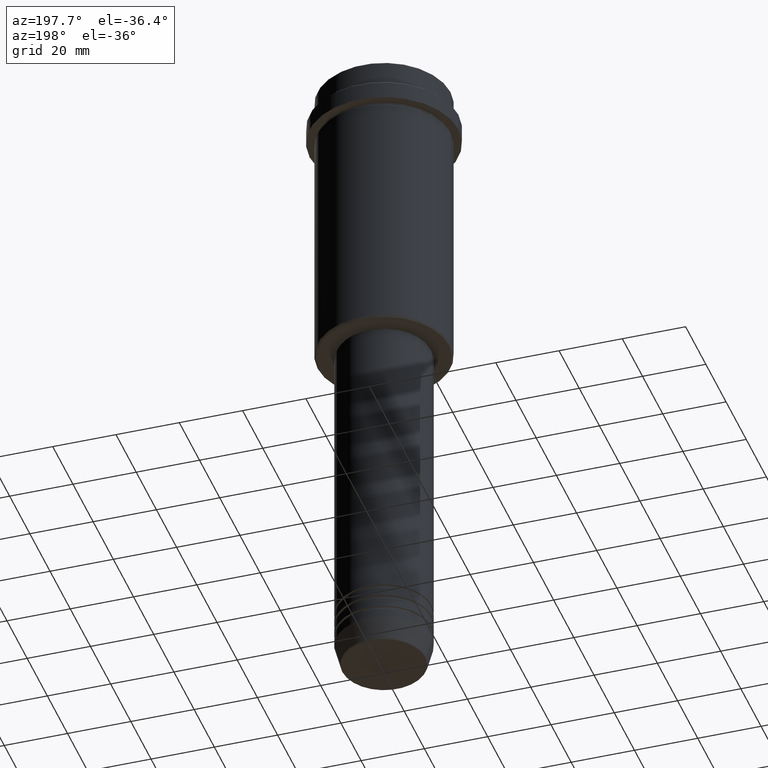
[diagram: clean part render]
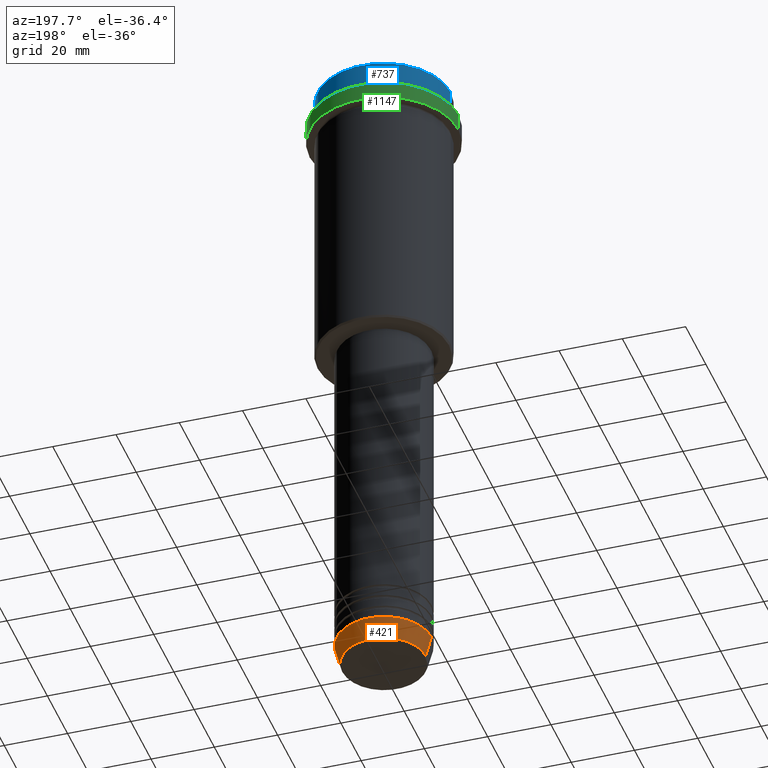
[diagram: same view with three faces highlighted in distinct colors, each labeled with its STEP entity id]
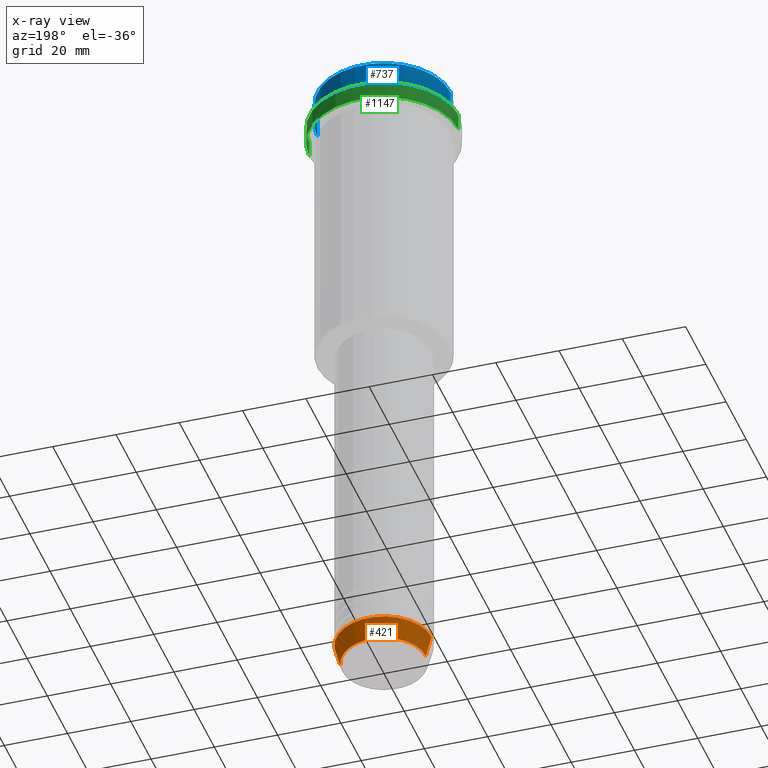
[diagram: x-ray of the same camera — body ghosted, the three highlighted faces saturated]
A machine part, auxiliary view with three faces highlighted in distinct colors.
The next image is the same camera in x-ray (body ghosted, the three faces saturated) — at least one of them is partly hidden behind the body in this view.
Their STEP definitions:

[orange] entity #421 — the highlighted conical surface has half-angle 15 deg.
#8 = CARTESIAN_POINT ( 'NONE',  ( 0.000000000000000000, 0.000000000000000000, -203.0000000000000000 ) ) ;
#14 = ORIENTED_EDGE ( 'NONE', *, *, #821, .F. ) ;
#23 = CARTESIAN_POINT ( 'NONE',  ( 13.22365507213719660, 0.000000000000000000, -209.6294095225512706 ) ) ;
#160 = VERTEX_POINT ( 'NONE', #788 ) ;
#237 = DIRECTION ( 'NONE',  ( 1.000000000000000000, 0.000000000000000000, 0.000000000000000000 ) ) ;
#299 = VECTOR ( 'NONE', #714, 1000.000000000000114 ) ;
#305 = AXIS2_PLACEMENT_3D ( 'NONE', #525, #544, #659 ) ;
#318 = CARTESIAN_POINT ( 'NONE',  ( -15.00000000000000000, 1.836970198721029589E-15, -203.0000000000000000 ) ) ;
#372 = CIRCLE ( 'NONE', #958, 15.00000000000000000 ) ;
#421 = ADVANCED_FACE ( 'NONE', ( #674 ), #1396, .T. ) ;
#516 = LINE ( 'NONE', #1261, #299 ) ;
#525 = CARTESIAN_POINT ( 'NONE',  ( 0.000000000000000000, 0.000000000000000000, -209.6294095225512706 ) ) ;
#544 = DIRECTION ( 'NONE',  ( -0.000000000000000000, -0.000000000000000000, 1.000000000000000000 ) ) ;
#606 = VERTEX_POINT ( 'NONE', #23 ) ;
#621 = CIRCLE ( 'NONE', #305, 13.22365507213719660 ) ;
#648 = DIRECTION ( 'NONE',  ( 0.2588190451025210725, 0.000000000000000000, 0.9659258262890680902 ) ) ;
#659 = DIRECTION ( 'NONE',  ( 1.000000000000000000, 0.000000000000000000, 0.000000000000000000 ) ) ;
#674 = FACE_OUTER_BOUND ( 'NONE', #1293, .T. ) ;
#678 = ORIENTED_EDGE ( 'NONE', *, *, #793, .T. ) ;
#714 = DIRECTION ( 'NONE',  ( -0.2588190451025210725, 3.169619151431769255E-17, 0.9659258262890680902 ) ) ;
#788 = CARTESIAN_POINT ( 'NONE',  ( -13.22365507213719837, 1.728200442216588780E-15, -209.6294095225512706 ) ) ;
#793 = EDGE_CURVE ( 'NONE', #606, #160, #621, .T. ) ;
#821 = EDGE_CURVE ( 'NONE', #606, #1371, #863, .T. ) ;
#858 = CARTESIAN_POINT ( 'NONE',  ( 15.00000000000000000, 0.000000000000000000, -203.0000000000000000 ) ) ;
#863 = LINE ( 'NONE', #1098, #1397 ) ;
#875 = DIRECTION ( 'NONE',  ( -0.000000000000000000, -0.000000000000000000, 1.000000000000000000 ) ) ;
#919 = EDGE_CURVE ( 'NONE', #1371, #920, #372, .T. ) ;
#920 = VERTEX_POINT ( 'NONE', #318 ) ;
#937 = ORIENTED_EDGE ( 'NONE', *, *, #1216, .T. ) ;
#958 = AXIS2_PLACEMENT_3D ( 'NONE', #8, #1312, #237 ) ;
#988 = CARTESIAN_POINT ( 'NONE',  ( 0.000000000000000000, 0.000000000000000000, -203.0000000000000000 ) ) ;
#1098 = CARTESIAN_POINT ( 'NONE',  ( 15.00000000000000000, 0.000000000000000000, -203.0000000000000000 ) ) ;
#1166 = ORIENTED_EDGE ( 'NONE', *, *, #919, .F. ) ;
#1216 = EDGE_CURVE ( 'NONE', #160, #920, #516, .T. ) ;
#1255 = AXIS2_PLACEMENT_3D ( 'NONE', #988, #875, #1301 ) ;
#1261 = CARTESIAN_POINT ( 'NONE',  ( -15.00000000000000000, 1.836970198721029589E-15, -203.0000000000000000 ) ) ;
#1293 = EDGE_LOOP ( 'NONE', ( #678, #937, #1166, #14 ) ) ;
#1301 = DIRECTION ( 'NONE',  ( 1.000000000000000000, 0.000000000000000000, 0.000000000000000000 ) ) ;
#1312 = DIRECTION ( 'NONE',  ( -0.000000000000000000, -0.000000000000000000, 1.000000000000000000 ) ) ;
#1371 = VERTEX_POINT ( 'NONE', #858 ) ;
#1396 = CONICAL_SURFACE ( 'NONE', #1255, 15.00000000000000000, 0.2617993877991497964 ) ;
#1397 = VECTOR ( 'NONE', #648, 1000.000000000000114 ) ;

[blue] entity #737 — the highlighted cylindrical surface (partial cylindrical patch) has radius 21 mm, axis along (-0, -0, 1).
#47 = VERTEX_POINT ( 'NONE', #1305 ) ;
#53 = EDGE_CURVE ( 'NONE', #872, #494, #437, .T. ) ;
#57 = ORIENTED_EDGE ( 'NONE', *, *, #157, .T. ) ;
#107 = CARTESIAN_POINT ( 'NONE',  ( -21.00000000000000000, 2.571758278209441661E-15, -7.999999999999998224 ) ) ;
#110 = CARTESIAN_POINT ( 'NONE',  ( -21.00000000000000000, 2.571758278209441661E-15, 0.000000000000000000 ) ) ;
#157 = EDGE_CURVE ( 'NONE', #494, #625, #559, .T. ) ;
#164 = CARTESIAN_POINT ( 'NONE',  ( 0.000000000000000000, 0.000000000000000000, -0.5000000000000108802 ) ) ;
#200 = CARTESIAN_POINT ( 'NONE',  ( 0.000000000000000000, 0.000000000000000000, 0.000000000000000000 ) ) ;
#254 = EDGE_CURVE ( 'NONE', #625, #47, #1228, .T. ) ;
#328 = VECTOR ( 'NONE', #1151, 1000.000000000000000 ) ;
#424 = EDGE_LOOP ( 'NONE', ( #537, #57, #691, #1137 ) ) ;
#437 = CIRCLE ( 'NONE', #1345, 21.00000000000000000 ) ;
#460 = AXIS2_PLACEMENT_3D ( 'NONE', #164, #1376, #1242 ) ;
#494 = VERTEX_POINT ( 'NONE', #107 ) ;
#519 = DIRECTION ( 'NONE',  ( 1.000000000000000000, 0.000000000000000000, 0.000000000000000000 ) ) ;
#537 = ORIENTED_EDGE ( 'NONE', *, *, #53, .T. ) ;
#542 = DIRECTION ( 'NONE',  ( 1.000000000000000000, 0.000000000000000000, 0.000000000000000000 ) ) ;
#554 = DIRECTION ( 'NONE',  ( -0.000000000000000000, -0.000000000000000000, 1.000000000000000000 ) ) ;
#559 = LINE ( 'NONE', #110, #844 ) ;
#625 = VERTEX_POINT ( 'NONE', #1356 ) ;
#647 = AXIS2_PLACEMENT_3D ( 'NONE', #200, #940, #519 ) ;
#691 = ORIENTED_EDGE ( 'NONE', *, *, #254, .T. ) ;
#716 = CYLINDRICAL_SURFACE ( 'NONE', #647, 21.00000000000000000 ) ;
#717 = EDGE_CURVE ( 'NONE', #872, #47, #1045, .T. ) ;
#737 = ADVANCED_FACE ( 'NONE', ( #1053 ), #716, .T. ) ;
#835 = CARTESIAN_POINT ( 'NONE',  ( 21.00000000000000000, 0.000000000000000000, 0.000000000000000000 ) ) ;
#844 = VECTOR ( 'NONE', #554, 1000.000000000000000 ) ;
#872 = VERTEX_POINT ( 'NONE', #1307 ) ;
#940 = DIRECTION ( 'NONE',  ( -0.000000000000000000, -0.000000000000000000, 1.000000000000000000 ) ) ;
#1045 = LINE ( 'NONE', #835, #328 ) ;
#1053 = FACE_OUTER_BOUND ( 'NONE', #424, .T. ) ;
#1076 = DIRECTION ( 'NONE',  ( -0.000000000000000000, -0.000000000000000000, 1.000000000000000000 ) ) ;
#1137 = ORIENTED_EDGE ( 'NONE', *, *, #717, .F. ) ;
#1151 = DIRECTION ( 'NONE',  ( -0.000000000000000000, -0.000000000000000000, 1.000000000000000000 ) ) ;
#1177 = CARTESIAN_POINT ( 'NONE',  ( 0.000000000000000000, 0.000000000000000000, -7.999999999999998224 ) ) ;
#1228 = CIRCLE ( 'NONE', #460, 21.00000000000000000 ) ;
#1242 = DIRECTION ( 'NONE',  ( 1.000000000000000000, 0.000000000000000000, 0.000000000000000000 ) ) ;
#1305 = CARTESIAN_POINT ( 'NONE',  ( 21.00000000000000000, 0.000000000000000000, -0.5000000000000108802 ) ) ;
#1307 = CARTESIAN_POINT ( 'NONE',  ( 21.00000000000000000, 0.000000000000000000, -7.999999999999998224 ) ) ;
#1345 = AXIS2_PLACEMENT_3D ( 'NONE', #1177, #1076, #542 ) ;
#1356 = CARTESIAN_POINT ( 'NONE',  ( -21.00000000000000000, 2.571758278209441661E-15, -0.5000000000000108802 ) ) ;
#1376 = DIRECTION ( 'NONE',  ( 0.000000000000000000, 0.000000000000000000, -1.000000000000000000 ) ) ;

[green] entity #1147 — the highlighted cylindrical surface (partial cylindrical patch) has radius 23.5 mm, axis along (-0, -0, 1).
#149 = VERTEX_POINT ( 'NONE', #767 ) ;
#167 = DIRECTION ( 'NONE',  ( 0.000000000000000000, 0.000000000000000000, -1.000000000000000000 ) ) ;
#185 = EDGE_CURVE ( 'NONE', #1405, #149, #1206, .T. ) ;
#189 = CARTESIAN_POINT ( 'NONE',  ( 0.000000000000000000, 0.000000000000000000, -9.499999999999971578 ) ) ;
#227 = VECTOR ( 'NONE', #1021, 1000.000000000000000 ) ;
#234 = CARTESIAN_POINT ( 'NONE',  ( 0.000000000000000000, 0.000000000000000000, -15.00000000000000000 ) ) ;
#249 = CARTESIAN_POINT ( 'NONE',  ( 23.50000000000000000, 0.000000000000000000, -9.499999999999971578 ) ) ;
#294 = DIRECTION ( 'NONE',  ( 1.000000000000000000, 0.000000000000000000, 0.000000000000000000 ) ) ;
#336 = ORIENTED_EDGE ( 'NONE', *, *, #185, .T. ) ;
#408 = DIRECTION ( 'NONE',  ( -0.000000000000000000, -0.000000000000000000, 1.000000000000000000 ) ) ;
#417 = CARTESIAN_POINT ( 'NONE',  ( 0.000000000000000000, 0.000000000000000000, 0.000000000000000000 ) ) ;
#477 = LINE ( 'NONE', #1122, #227 ) ;
#503 = CARTESIAN_POINT ( 'NONE',  ( -23.50000000000000000, 2.877919977996280320E-15, -9.499999999999971578 ) ) ;
#590 = CIRCLE ( 'NONE', #730, 23.50000000000000000 ) ;
#598 = VERTEX_POINT ( 'NONE', #249 ) ;
#627 = CARTESIAN_POINT ( 'NONE',  ( 23.50000000000000355, 0.000000000000000000, -15.00000000000000000 ) ) ;
#661 = AXIS2_PLACEMENT_3D ( 'NONE', #417, #408, #294 ) ;
#669 = DIRECTION ( 'NONE',  ( -0.000000000000000000, -0.000000000000000000, 1.000000000000000000 ) ) ;
#730 = AXIS2_PLACEMENT_3D ( 'NONE', #189, #167, #827 ) ;
#756 = VECTOR ( 'NONE', #879, 1000.000000000000000 ) ;
#759 = LINE ( 'NONE', #1412, #756 ) ;
#767 = CARTESIAN_POINT ( 'NONE',  ( -23.50000000000000711, 2.877919977996281109E-15, -15.00000000000000000 ) ) ;
#811 = ORIENTED_EDGE ( 'NONE', *, *, #864, .T. ) ;
#823 = AXIS2_PLACEMENT_3D ( 'NONE', #234, #669, #1096 ) ;
#827 = DIRECTION ( 'NONE',  ( 1.000000000000000000, 0.000000000000000000, 0.000000000000000000 ) ) ;
#851 = ORIENTED_EDGE ( 'NONE', *, *, #1006, .F. ) ;
#864 = EDGE_CURVE ( 'NONE', #149, #1347, #759, .T. ) ;
#879 = DIRECTION ( 'NONE',  ( -0.000000000000000000, -0.000000000000000000, 1.000000000000000000 ) ) ;
#961 = ORIENTED_EDGE ( 'NONE', *, *, #1192, .T. ) ;
#1006 = EDGE_CURVE ( 'NONE', #1405, #598, #477, .T. ) ;
#1021 = DIRECTION ( 'NONE',  ( -0.000000000000000000, -0.000000000000000000, 1.000000000000000000 ) ) ;
#1031 = EDGE_LOOP ( 'NONE', ( #336, #811, #961, #851 ) ) ;
#1061 = FACE_OUTER_BOUND ( 'NONE', #1031, .T. ) ;
#1096 = DIRECTION ( 'NONE',  ( 1.000000000000000000, 0.000000000000000000, 0.000000000000000000 ) ) ;
#1122 = CARTESIAN_POINT ( 'NONE',  ( 23.50000000000000000, 0.000000000000000000, 0.000000000000000000 ) ) ;
#1147 = ADVANCED_FACE ( 'NONE', ( #1061 ), #1274, .T. ) ;
#1192 = EDGE_CURVE ( 'NONE', #1347, #598, #590, .T. ) ;
#1206 = CIRCLE ( 'NONE', #823, 23.50000000000000355 ) ;
#1274 = CYLINDRICAL_SURFACE ( 'NONE', #661, 23.50000000000000000 ) ;
#1347 = VERTEX_POINT ( 'NONE', #503 ) ;
#1405 = VERTEX_POINT ( 'NONE', #627 ) ;
#1412 = CARTESIAN_POINT ( 'NONE',  ( -23.50000000000000000, 2.877919977996280320E-15, 0.000000000000000000 ) ) ;